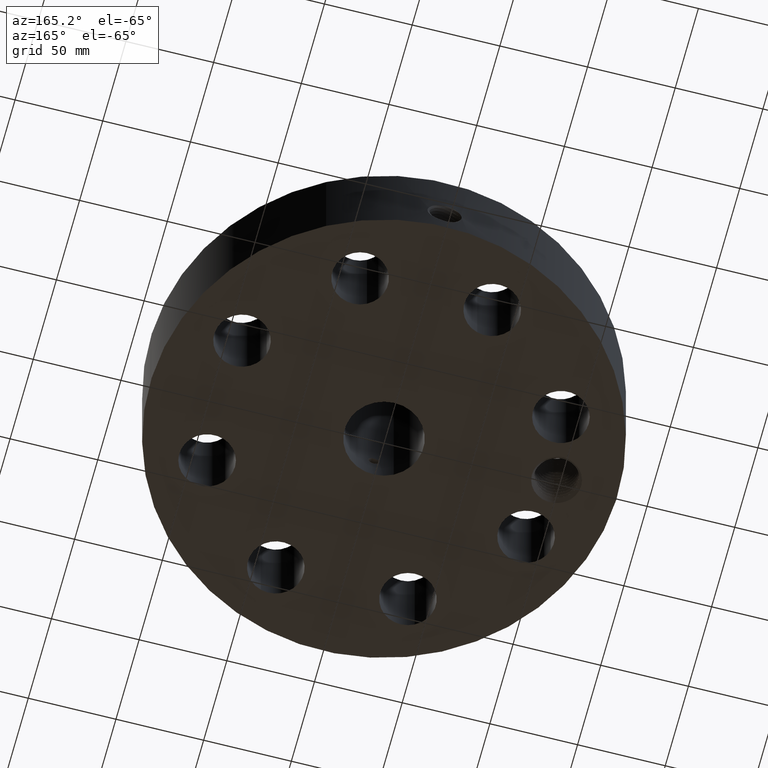
[diagram: clean part render]
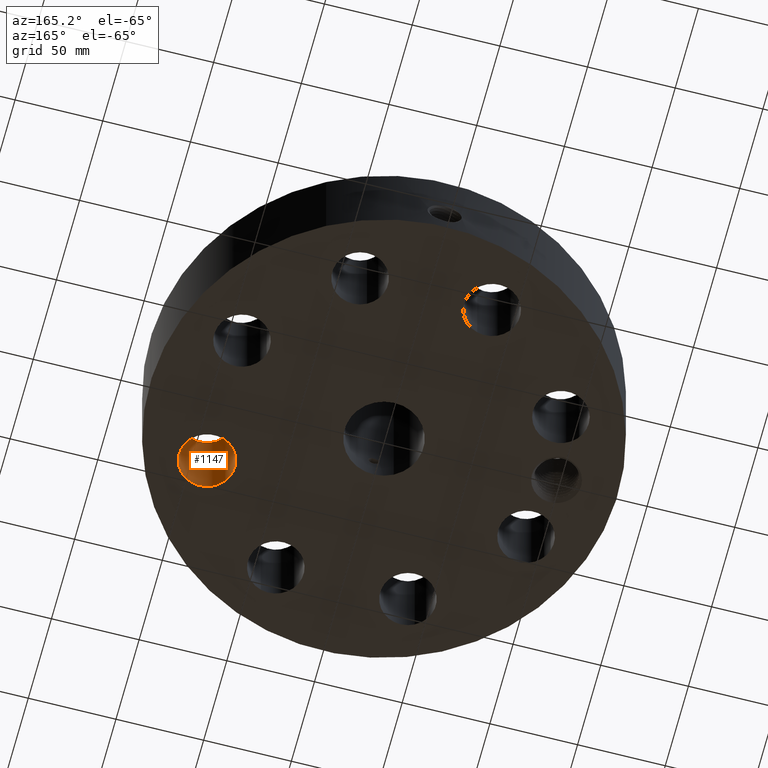
[diagram: same view with one face highlighted and labeled with its STEP entity id]
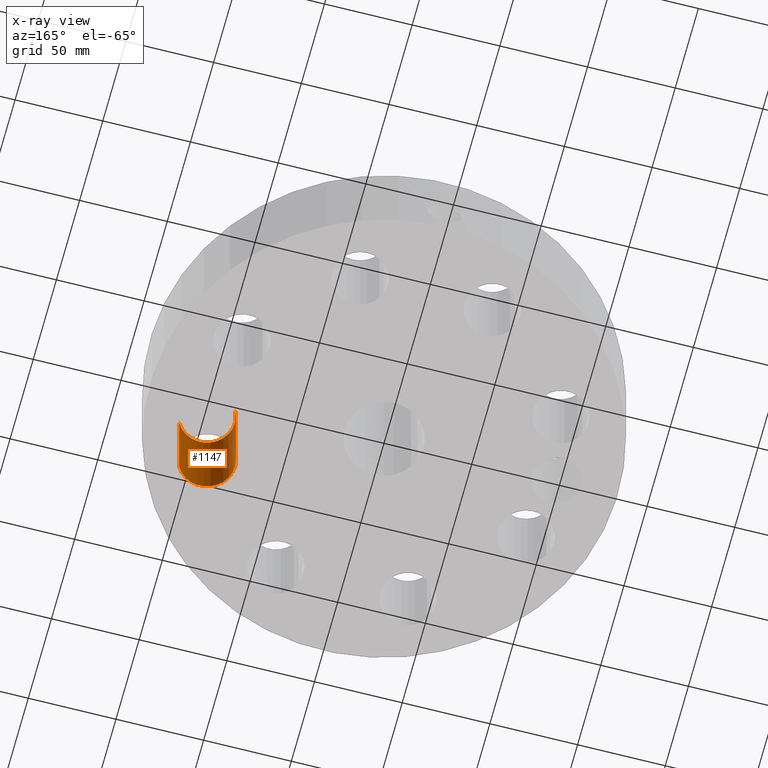
[diagram: x-ray of the same camera — body ghosted, the highlighted face saturated]
A machine part, auxiliary view. The second image highlights one B-rep face of the part: STEP entity #1147.
The next image is the same camera in x-ray: the body ghosted, the highlighted face saturated — about 9% of this face is hidden behind the body in this view.
In plain terms, the highlighted cylindrical surface (edge-blend (fillet) strip) has radius 15.875 mm, axis along (0, -0, -1).
Its self-contained STEP definition (entity closure, byte-faithful):
#231=AXIS2_PLACEMENT_3D('Circle Axis2P3D',#229,#230,$) ;
#564=AXIS2_PLACEMENT_3D('Circle Axis2P3D',#562,#563,$) ;
#1129=AXIS2_PLACEMENT_3D('Cylinder Axis2P3D',#1126,#1127,#1128) ;
#229=CARTESIAN_POINT('Axis2P3D Location',(3.5800331885,-1.48289830042,0.250000000001)) ;
#233=CARTESIAN_POINT('Vertex',(4.12852228968,-1.78253926205,0.250000000001)) ;
#235=CARTESIAN_POINT('Vertex',(3.03154408731,-1.18325733879,0.250000000001)) ;
#557=CARTESIAN_POINT('Vertex',(3.03154408731,-1.18325733879,2.50000000001)) ;
#559=CARTESIAN_POINT('Vertex',(4.12852228968,-1.78253926205,2.50000000001)) ;
#562=CARTESIAN_POINT('Axis2P3D Location',(3.5800331885,-1.48289830042,2.50000000001)) ;
#1126=CARTESIAN_POINT('Axis2P3D Location',(3.5800331885,-1.48289830042,2.49606299214)) ;
#1131=CARTESIAN_POINT('Line Origine',(4.12852228968,-1.78253926205,1.37500000001)) ;
#1136=CARTESIAN_POINT('Line Origine',(3.03154408731,-1.18325733879,1.37500000001)) ;
#230=DIRECTION('Axis2P3D Direction',(0.,0.,-0.0393700787402)) ;
#563=DIRECTION('Axis2P3D Direction',(0.,0.,-0.0393700787402)) ;
#1127=DIRECTION('Axis2P3D Direction',(0.,-0.,-0.0393700787402)) ;
#1128=DIRECTION('Axis2P3D XDirection',(-0.0345504945626,0.0188750212049,0.)) ;
#1132=DIRECTION('Vector Direction',(0.,0.,-0.0393700787402)) ;
#1137=DIRECTION('Vector Direction',(0.,0.,-0.0393700787402)) ;
#1133=VECTOR('Line Direction',#1132,0.0393700787402) ;
#1138=VECTOR('Line Direction',#1137,0.0393700787402) ;
#1142=ORIENTED_EDGE('',*,*,#1135,.F.) ;
#1143=ORIENTED_EDGE('',*,*,#237,.T.) ;
#1144=ORIENTED_EDGE('',*,*,#1140,.T.) ;
#1145=ORIENTED_EDGE('',*,*,#566,.F.) ;
#1147=ADVANCED_FACE('PartBody',(#1146),#1130,.F.) ;
#232=CIRCLE('generated circle',#231,0.625000000002) ;
#565=CIRCLE('generated circle',#564,0.625000000002) ;
#1130=CYLINDRICAL_SURFACE('generated cylinder',#1129,0.625000000002) ;
#237=EDGE_CURVE('',#234,#236,#232,.T.) ;
#566=EDGE_CURVE('',#560,#558,#565,.T.) ;
#1135=EDGE_CURVE('',#234,#560,#1134,.F.) ;
#1140=EDGE_CURVE('',#236,#558,#1139,.F.) ;
#1141=EDGE_LOOP('',(#1142,#1143,#1144,#1145)) ;
#1146=FACE_OUTER_BOUND('',#1141,.T.) ;
#1134=LINE('Line',#1131,#1133) ;
#1139=LINE('Line',#1136,#1138) ;
#234=VERTEX_POINT('',#233) ;
#236=VERTEX_POINT('',#235) ;
#558=VERTEX_POINT('',#557) ;
#560=VERTEX_POINT('',#559) ;